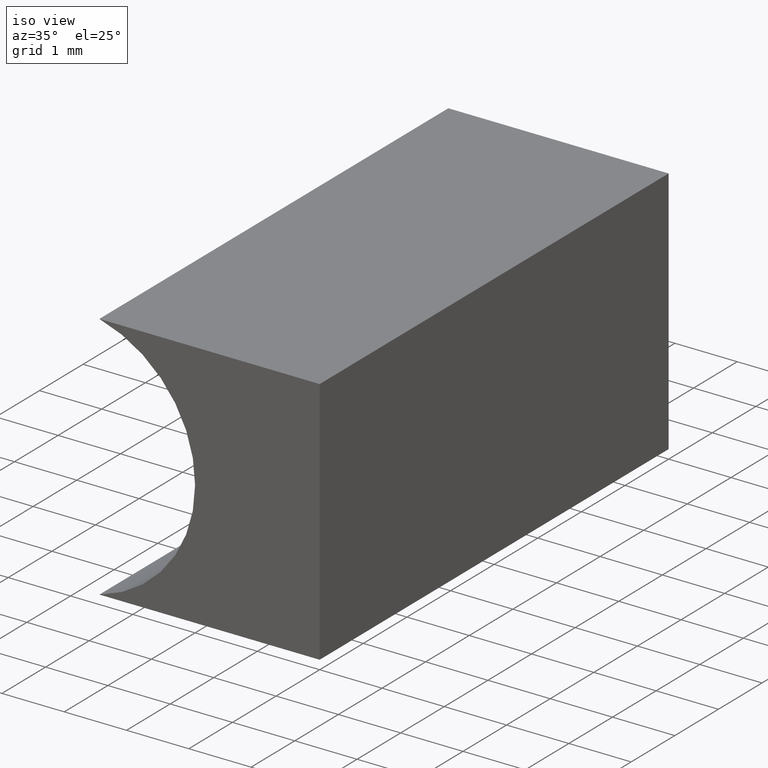
[diagram: clean part render]
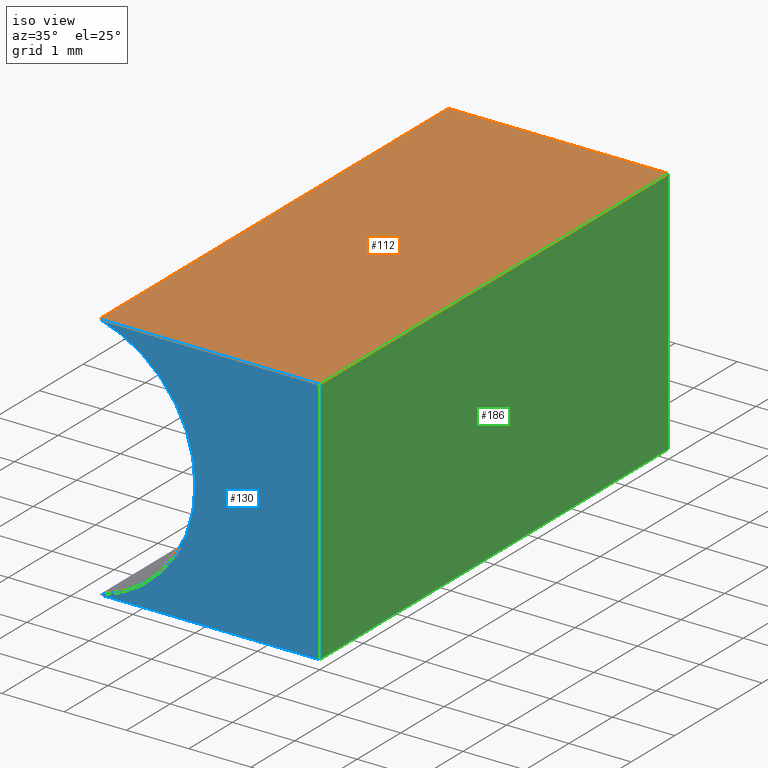
[diagram: same view with three faces highlighted in distinct colors, each labeled with its STEP entity id]
A machine part, iso view with three faces highlighted in distinct colors.
Their STEP definitions:

[orange] entity #112 — the highlighted planar face has unit normal (0, 0, -1).
#4 = CARTESIAN_POINT ( 'NONE',  ( 0.0000000000000000000, 0.0000000000000000000, 4.000000000000000000 ) ) ;
#19 = CARTESIAN_POINT ( 'NONE',  ( 0.0000000000000000000, 8.000000000000000000, 4.000000000000000000 ) ) ;
#20 = DIRECTION ( 'NONE',  ( -0.0000000000000000000, -1.000000000000000000, -0.0000000000000000000 ) ) ;
#22 = DIRECTION ( 'NONE',  ( -1.000000000000000000, 0.0000000000000000000, -0.0000000000000000000 ) ) ;
#31 = VECTOR ( 'NONE', #55, 1000.000000000000000 ) ;
#33 = VECTOR ( 'NONE', #54, 1000.000000000000000 ) ;
#35 = CARTESIAN_POINT ( 'NONE',  ( -3.536239754196699900, 8.000000000000000000, 4.000000000000000000 ) ) ;
#40 = LINE ( 'NONE', #19, #31 ) ;
#43 = CARTESIAN_POINT ( 'NONE',  ( 0.0000000000000000000, 8.000000000000000000, 4.000000000000000000 ) ) ;
#46 = EDGE_CURVE ( 'NONE', #169, #171, #109, .T. ) ;
#54 = DIRECTION ( 'NONE',  ( 1.000000000000000000, -0.0000000000000000000, -0.0000000000000000000 ) ) ;
#55 = DIRECTION ( 'NONE',  ( 1.000000000000000000, -0.0000000000000000000, -0.0000000000000000000 ) ) ;
#58 = PLANE ( 'NONE',  #153 ) ;
#60 = FACE_OUTER_BOUND ( 'NONE', #81, .T. ) ;
#65 = ORIENTED_EDGE ( 'NONE', *, *, #46, .F. ) ;
#69 = CARTESIAN_POINT ( 'NONE',  ( 0.0000000000000000000, 0.0000000000000000000, 4.000000000000000000 ) ) ;
#72 = VERTEX_POINT ( 'NONE', #73 ) ;
#73 = CARTESIAN_POINT ( 'NONE',  ( -3.536239754196699900, 0.0000000000000000000, 4.000000000000000000 ) ) ;
#77 = ORIENTED_EDGE ( 'NONE', *, *, #167, .T. ) ;
#81 = EDGE_LOOP ( 'NONE', ( #164, #65, #110, #77 ) ) ;
#86 = VERTEX_POINT ( 'NONE', #177 ) ;
#101 = VECTOR ( 'NONE', #198, 1000.000000000000000 ) ;
#109 = LINE ( 'NONE', #43, #101 ) ;
#110 = ORIENTED_EDGE ( 'NONE', *, *, #195, .F. ) ;
#112 = ADVANCED_FACE ( 'NONE', ( #60 ), #58, .F. ) ;
#135 = CARTESIAN_POINT ( 'NONE',  ( 0.0000000000000000000, 8.000000000000000000, 4.000000000000000000 ) ) ;
#137 = DIRECTION ( 'NONE',  ( 0.0000000000000000000, 0.0000000000000000000, -1.000000000000000000 ) ) ;
#153 = AXIS2_PLACEMENT_3D ( 'NONE', #166, #137, #22 ) ;
#155 = LINE ( 'NONE', #35, #197 ) ;
#164 = ORIENTED_EDGE ( 'NONE', *, *, #203, .T. ) ;
#166 = CARTESIAN_POINT ( 'NONE',  ( 0.0000000000000000000, 8.000000000000000000, 4.000000000000000000 ) ) ;
#167 = EDGE_CURVE ( 'NONE', #86, #72, #155, .T. ) ;
#169 = VERTEX_POINT ( 'NONE', #135 ) ;
#171 = VERTEX_POINT ( 'NONE', #4 ) ;
#177 = CARTESIAN_POINT ( 'NONE',  ( -3.536239754196699900, 8.000000000000000000, 4.000000000000000000 ) ) ;
#189 = LINE ( 'NONE', #69, #33 ) ;
#195 = EDGE_CURVE ( 'NONE', #86, #169, #40, .T. ) ;
#197 = VECTOR ( 'NONE', #20, 1000.000000000000000 ) ;
#198 = DIRECTION ( 'NONE',  ( -0.0000000000000000000, -1.000000000000000000, -0.0000000000000000000 ) ) ;
#203 = EDGE_CURVE ( 'NONE', #72, #171, #189, .T. ) ;

[blue] entity #130 — the highlighted planar face has unit normal (0, 1, 0).
#4 = CARTESIAN_POINT ( 'NONE',  ( 0.0000000000000000000, 0.0000000000000000000, 4.000000000000000000 ) ) ;
#7 = CARTESIAN_POINT ( 'NONE',  ( -4.069999999999999400, 0.0000000000000000000, 2.000000000000000400 ) ) ;
#8 = CARTESIAN_POINT ( 'NONE',  ( 0.0000000000000000000, 0.0000000000000000000, 0.0000000000000000000 ) ) ;
#12 = VECTOR ( 'NONE', #194, 1000.000000000000000 ) ;
#14 = LINE ( 'NONE', #168, #92 ) ;
#27 = ORIENTED_EDGE ( 'NONE', *, *, #111, .F. ) ;
#30 = ORIENTED_EDGE ( 'NONE', *, *, #108, .F. ) ;
#33 = VECTOR ( 'NONE', #54, 1000.000000000000000 ) ;
#38 = DIRECTION ( 'NONE',  ( 0.0000000000000000000, 0.0000000000000000000, 1.000000000000000000 ) ) ;
#39 = DIRECTION ( 'NONE',  ( -1.000000000000000000, 0.0000000000000000000, 1.931507277844383500E-016 ) ) ;
#47 = ORIENTED_EDGE ( 'NONE', *, *, #203, .F. ) ;
#53 = LINE ( 'NONE', #8, #12 ) ;
#54 = DIRECTION ( 'NONE',  ( 1.000000000000000000, -0.0000000000000000000, -0.0000000000000000000 ) ) ;
#57 = CARTESIAN_POINT ( 'NONE',  ( -4.069999999999999400, 0.0000000000000000000, 2.000000000000000400 ) ) ;
#69 = CARTESIAN_POINT ( 'NONE',  ( 0.0000000000000000000, 0.0000000000000000000, 4.000000000000000000 ) ) ;
#72 = VERTEX_POINT ( 'NONE', #73 ) ;
#73 = CARTESIAN_POINT ( 'NONE',  ( -3.536239754196699900, 0.0000000000000000000, 4.000000000000000000 ) ) ;
#78 = EDGE_CURVE ( 'NONE', #125, #154, #14, .T. ) ;
#88 = DIRECTION ( 'NONE',  ( 0.0000000000000000000, 1.000000000000000000, 0.0000000000000000000 ) ) ;
#92 = VECTOR ( 'NONE', #39, 1000.000000000000000 ) ;
#100 = CARTESIAN_POINT ( 'NONE',  ( 0.0000000000000000000, 0.0000000000000000000, 0.0000000000000000000 ) ) ;
#102 = PLANE ( 'NONE',  #170 ) ;
#104 = ORIENTED_EDGE ( 'NONE', *, *, #78, .F. ) ;
#108 = EDGE_CURVE ( 'NONE', #171, #125, #53, .T. ) ;
#111 = EDGE_CURVE ( 'NONE', #154, #72, #139, .T. ) ;
#122 = AXIS2_PLACEMENT_3D ( 'NONE', #57, #152, #38 ) ;
#125 = VERTEX_POINT ( 'NONE', #100 ) ;
#129 = EDGE_LOOP ( 'NONE', ( #104, #30, #47, #27 ) ) ;
#130 = ADVANCED_FACE ( 'NONE', ( #142 ), #102, .F. ) ;
#139 = CIRCLE ( 'NONE', #122, 2.069999999999999400 ) ;
#142 = FACE_OUTER_BOUND ( 'NONE', #129, .T. ) ;
#152 = DIRECTION ( 'NONE',  ( -0.0000000000000000000, -1.000000000000000000, -0.0000000000000000000 ) ) ;
#154 = VERTEX_POINT ( 'NONE', #165 ) ;
#165 = CARTESIAN_POINT ( 'NONE',  ( -3.536239754196699900, 0.0000000000000000000, 8.673617379884035500E-016 ) ) ;
#168 = CARTESIAN_POINT ( 'NONE',  ( 0.0000000000000000000, 0.0000000000000000000, 0.0000000000000000000 ) ) ;
#170 = AXIS2_PLACEMENT_3D ( 'NONE', #7, #88, #176 ) ;
#171 = VERTEX_POINT ( 'NONE', #4 ) ;
#176 = DIRECTION ( 'NONE',  ( 0.0000000000000000000, -0.0000000000000000000, 1.000000000000000000 ) ) ;
#189 = LINE ( 'NONE', #69, #33 ) ;
#194 = DIRECTION ( 'NONE',  ( -0.0000000000000000000, -0.0000000000000000000, -1.000000000000000000 ) ) ;
#203 = EDGE_CURVE ( 'NONE', #72, #171, #189, .T. ) ;

[green] entity #186 — the highlighted planar face has unit normal (-1, 0, 0).
#2 = EDGE_CURVE ( 'NONE', #169, #151, #181, .T. ) ;
#4 = CARTESIAN_POINT ( 'NONE',  ( 0.0000000000000000000, 0.0000000000000000000, 4.000000000000000000 ) ) ;
#8 = CARTESIAN_POINT ( 'NONE',  ( 0.0000000000000000000, 0.0000000000000000000, 0.0000000000000000000 ) ) ;
#12 = VECTOR ( 'NONE', #194, 1000.000000000000000 ) ;
#15 = EDGE_LOOP ( 'NONE', ( #123, #185, #199, #204 ) ) ;
#34 = DIRECTION ( 'NONE',  ( -1.000000000000000000, 0.0000000000000000000, 0.0000000000000000000 ) ) ;
#37 = CARTESIAN_POINT ( 'NONE',  ( 0.0000000000000000000, 8.000000000000000000, 0.0000000000000000000 ) ) ;
#43 = CARTESIAN_POINT ( 'NONE',  ( 0.0000000000000000000, 8.000000000000000000, 4.000000000000000000 ) ) ;
#44 = AXIS2_PLACEMENT_3D ( 'NONE', #98, #34, #134 ) ;
#46 = EDGE_CURVE ( 'NONE', #169, #171, #109, .T. ) ;
#53 = LINE ( 'NONE', #8, #12 ) ;
#56 = DIRECTION ( 'NONE',  ( -0.0000000000000000000, -1.000000000000000000, -0.0000000000000000000 ) ) ;
#66 = VECTOR ( 'NONE', #68, 1000.000000000000000 ) ;
#68 = DIRECTION ( 'NONE',  ( -0.0000000000000000000, -0.0000000000000000000, -1.000000000000000000 ) ) ;
#98 = CARTESIAN_POINT ( 'NONE',  ( 0.0000000000000000000, 8.000000000000000000, 0.0000000000000000000 ) ) ;
#100 = CARTESIAN_POINT ( 'NONE',  ( 0.0000000000000000000, 0.0000000000000000000, 0.0000000000000000000 ) ) ;
#101 = VECTOR ( 'NONE', #198, 1000.000000000000000 ) ;
#108 = EDGE_CURVE ( 'NONE', #171, #125, #53, .T. ) ;
#109 = LINE ( 'NONE', #43, #101 ) ;
#113 = FACE_OUTER_BOUND ( 'NONE', #15, .T. ) ;
#123 = ORIENTED_EDGE ( 'NONE', *, *, #108, .T. ) ;
#125 = VERTEX_POINT ( 'NONE', #100 ) ;
#134 = DIRECTION ( 'NONE',  ( 0.0000000000000000000, 0.0000000000000000000, 1.000000000000000000 ) ) ;
#135 = CARTESIAN_POINT ( 'NONE',  ( 0.0000000000000000000, 8.000000000000000000, 4.000000000000000000 ) ) ;
#147 = PLANE ( 'NONE',  #44 ) ;
#149 = CARTESIAN_POINT ( 'NONE',  ( 0.0000000000000000000, 8.000000000000000000, 0.0000000000000000000 ) ) ;
#151 = VERTEX_POINT ( 'NONE', #37 ) ;
#159 = VECTOR ( 'NONE', #56, 1000.000000000000000 ) ;
#163 = CARTESIAN_POINT ( 'NONE',  ( 0.0000000000000000000, 8.000000000000000000, 0.0000000000000000000 ) ) ;
#169 = VERTEX_POINT ( 'NONE', #135 ) ;
#171 = VERTEX_POINT ( 'NONE', #4 ) ;
#181 = LINE ( 'NONE', #163, #66 ) ;
#182 = EDGE_CURVE ( 'NONE', #151, #125, #201, .T. ) ;
#185 = ORIENTED_EDGE ( 'NONE', *, *, #182, .F. ) ;
#186 = ADVANCED_FACE ( 'NONE', ( #113 ), #147, .F. ) ;
#194 = DIRECTION ( 'NONE',  ( -0.0000000000000000000, -0.0000000000000000000, -1.000000000000000000 ) ) ;
#198 = DIRECTION ( 'NONE',  ( -0.0000000000000000000, -1.000000000000000000, -0.0000000000000000000 ) ) ;
#199 = ORIENTED_EDGE ( 'NONE', *, *, #2, .F. ) ;
#201 = LINE ( 'NONE', #149, #159 ) ;
#204 = ORIENTED_EDGE ( 'NONE', *, *, #46, .T. ) ;